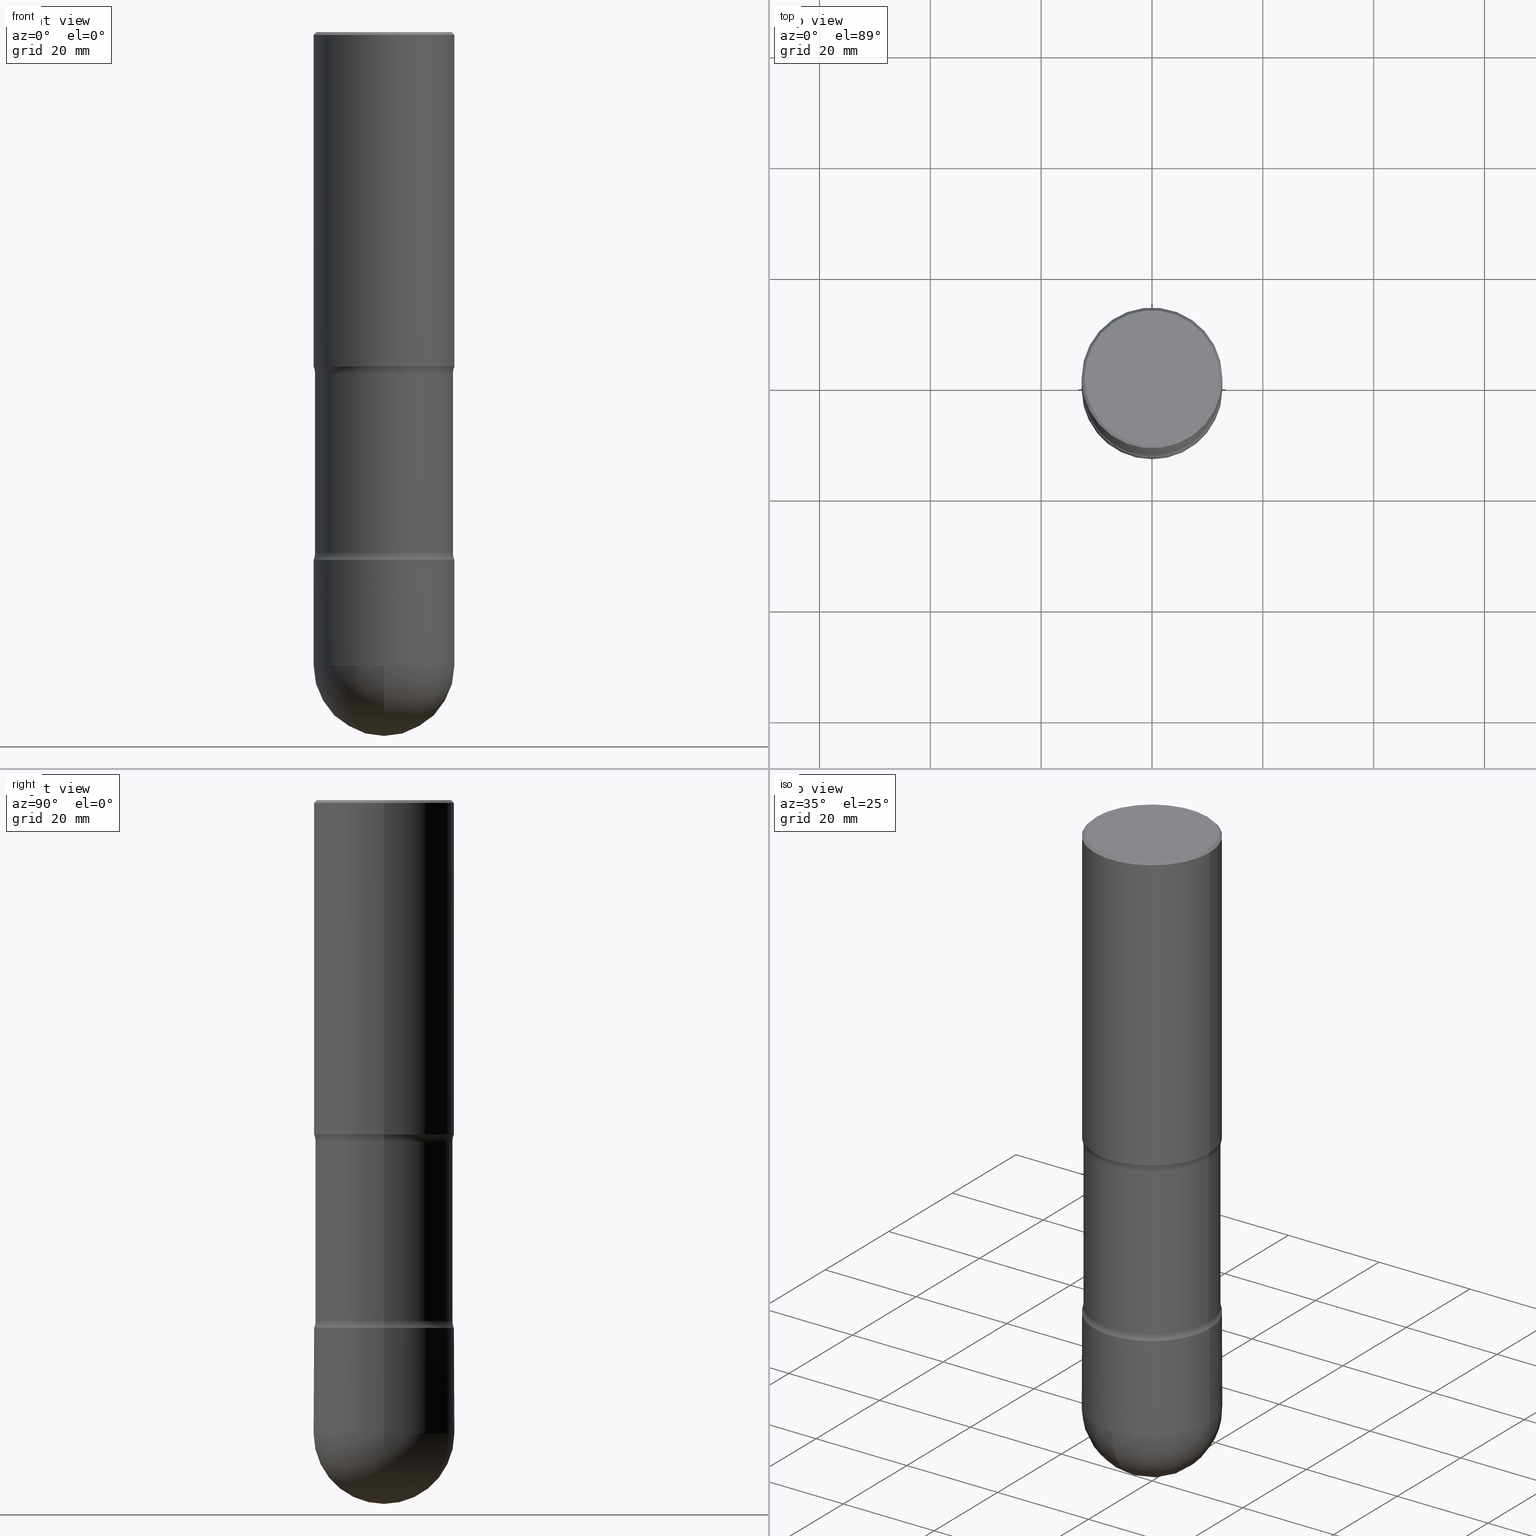
[diagram: canonical four-view strip — front | top / right | iso, engineering-drawing reading convention]
A machine part, canonical four-view strip (front | top / right | iso — engineering-drawing reading convention). The complete STEP part file that produces these views, byte-faithful:
ISO-10303-21;
HEADER;
FILE_DESCRIPTION (( 'STEP AP203' ),
    '1' );
FILE_NAME ('35018.STEP',
    '2024-02-29T19:24:23',
    ( '' ),
    ( '' ),
    'SwSTEP 2.0',
    'SolidWorks 2023',
    '' );
FILE_SCHEMA (( 'CONFIG_CONTROL_DESIGN' ));
ENDSEC;

DATA;
#1 = CARTESIAN_POINT ( 'NONE',  ( -0.4999999999999998335, -9.601573681818665636E-15, -3.750000000000000000 ) ) ;
#2 = EDGE_CURVE ( 'NONE', #437, #478, #128, .T. ) ;
#3 = AXIS2_PLACEMENT_3D ( 'NONE', #87, #133, #352 ) ;
#4 = TOROIDAL_SURFACE ( 'NONE', #321, 0.6149999999999979927, 0.1249999999999984596 ) ;
#5 = FACE_OUTER_BOUND ( 'NONE', #469, .T. ) ;
#6 = DIMENSIONAL_EXPONENTS ( 1.000000000000000000, 0.000000000000000000, 0.000000000000000000, 0.000000000000000000, 0.000000000000000000, 0.000000000000000000, 0.000000000000000000 ) ;
#7 = DATE_TIME_ROLE ( 'creation_date' ) ;
#8 = CARTESIAN_POINT ( 'NONE',  ( -0.4999999999999993339, -1.084964684392748411E-14, -4.499999999999999112 ) ) ;
#9 = LINE ( 'NONE', #121, #104 ) ;
#10 = DIRECTION ( 'NONE',  ( -2.445468806185136597E-29, 3.491481338843145583E-15, 1.000000000000000000 ) ) ;
#11 = AXIS2_PLACEMENT_3D ( 'NONE', #345, #443, #401 ) ;
#12 = PERSON_AND_ORGANIZATION ( #278, #349 ) ;
#13 = LINE ( 'NONE', #1, #461 ) ;
#14 = CIRCLE ( 'NONE', #545, 0.4799999999999995937 ) ;
#15 = UNCERTAINTY_MEASURE_WITH_UNIT (LENGTH_MEASURE( 1.000000000000000082E-05 ), #166, 'distance_accuracy_value', 'NONE');
#16 = DIRECTION ( 'NONE',  ( -2.445468806185136597E-29, 3.491481338843145583E-15, 1.000000000000000000 ) ) ;
#17 = DIRECTION ( 'NONE',  ( -1.000000000000000000, 6.982962677686267499E-15, 0.000000000000000000 ) ) ;
#18 = PERSON_AND_ORGANIZATION_ROLE ( 'creator' ) ;
#19 = CC_DESIGN_PERSON_AND_ORGANIZATION_ASSIGNMENT ( #456, #18, ( #288 ) ) ;
#20 = VERTEX_POINT ( 'NONE', #557 ) ;
#21 = DIRECTION ( 'NONE',  ( -1.000000000000000000, 6.982962677686267499E-15, 0.000000000000000000 ) ) ;
#22 = DIRECTION ( 'NONE',  ( -1.000000000000000000, 6.982962677686266711E-15, -4.883557194083113462E-29 ) ) ;
#23 = VERTEX_POINT ( 'NONE', #170 ) ;
#24 = DATE_AND_TIME ( #366, #446 ) ;
#25 = DIRECTION ( 'NONE',  ( -1.000000000000000000, 6.982962677686267499E-15, 0.000000000000000000 ) ) ;
#26 = EDGE_CURVE ( 'NONE', #209, #389, #63, .T. ) ;
#27 = ORIENTED_EDGE ( 'NONE', *, *, #453, .F. ) ;
#28 = FACE_OUTER_BOUND ( 'NONE', #335, .T. ) ;
#29 = VERTEX_POINT ( 'NONE', #433 ) ;
#30 = CARTESIAN_POINT ( 'NONE',  ( 9.170508023194262238E-29, -1.309305502066179741E-14, -3.750000000000000000 ) ) ;
#31 = TOROIDAL_SURFACE ( 'NONE', #544, 0.6149999999999876676, 0.1249999999999882871 ) ;
#32 = CYLINDRICAL_SURFACE ( 'NONE', #503, 0.4999999999999998335 ) ;
#33 = DIRECTION ( 'NONE',  ( -6.982962677686265922E-15, -1.000000000000000000, 0.000000000000000000 ) ) ;
#34 = ORIENTED_EDGE ( 'NONE', *, *, #450, .T. ) ;
#35 = DIRECTION ( 'NONE',  ( 2.445468806185136597E-29, -3.491481338843145583E-15, -1.000000000000000000 ) ) ;
#36 = VERTEX_POINT ( 'NONE', #518 ) ;
#37 = ORIENTED_EDGE ( 'NONE', *, *, #284, .F. ) ;
#38 = EDGE_CURVE ( 'NONE', #286, #36, #285, .T. ) ;
#39 = CARTESIAN_POINT ( 'NONE',  ( 0.4899999999999994360, -1.405430561911518224E-14, -3.701010205144336318 ) ) ;
#40 = LENGTH_MEASURE_WITH_UNIT ( LENGTH_MEASURE( 0.02539999999999999897 ), #200 );
#41 = EDGE_LOOP ( 'NONE', ( #442, #542, #431, #383 ) ) ;
#42 = ORIENTED_EDGE ( 'NONE', *, *, #492, .F. ) ;
#43 = VECTOR ( 'NONE', #560, 39.37007874015748143 ) ;
#44 =( GEOMETRIC_REPRESENTATION_CONTEXT ( 3 ) GLOBAL_UNCERTAINTY_ASSIGNED_CONTEXT ( ( #15 ) ) GLOBAL_UNIT_ASSIGNED_CONTEXT ( ( #166, #338, #248 ) ) REPRESENTATION_CONTEXT ( 'NONE', 'WORKASPACE' ) );
#45 = DIRECTION ( 'NONE',  ( 6.860497997771531562E-15, 1.000000000000000000, -3.491481338843145583E-15 ) ) ;
#46 = EDGE_CURVE ( 'NONE', #119, #29, #160, .T. ) ;
#47 = DIRECTION ( 'NONE',  ( 2.445468806185136597E-29, -3.491481338843145583E-15, -1.000000000000000000 ) ) ;
#48 = APPLICATION_PROTOCOL_DEFINITION ( 'international standard', 'config_control_design', 1994, #316 ) ;
#49 = FACE_OUTER_BOUND ( 'NONE', #436, .T. ) ;
#50 = EDGE_CURVE ( 'NONE', #437, #23, #140, .T. ) ;
#51 = CARTESIAN_POINT ( 'NONE',  ( -0.6149999999999979927, -8.627486019352455660E-15, -3.701010205144336762 ) ) ;
#52 = AXIS2_PLACEMENT_3D ( 'NONE', #183, #311, #268 ) ;
#53 = CC_DESIGN_SECURITY_CLASSIFICATION ( #429, ( #485 ) ) ;
#54 = DIRECTION ( 'NONE',  ( -2.445468806185136597E-29, 3.491481338843145583E-15, 1.000000000000000000 ) ) ;
#55 = CC_DESIGN_PERSON_AND_ORGANIZATION_ASSIGNMENT ( #318, #60, ( #368 ) ) ;
#56 = CARTESIAN_POINT ( 'NONE',  ( -0.4999999999999999445, -4.800786840909344651E-15, -2.375000000000002220 ) ) ;
#57 = AXIS2_PLACEMENT_3D ( 'NONE', #216, #346, #130 ) ;
#58 = CC_DESIGN_APPROVAL ( #325, ( #485 ) ) ;
#59 = EDGE_CURVE ( 'NONE', #393, #250, #382, .T. ) ;
#60 = PERSON_AND_ORGANIZATION_ROLE ( 'design_owner' ) ;
#61 = PERSON_AND_ORGANIZATION_ROLE ( 'classification_officer' ) ;
#62 = PLANE ( 'NONE',  #347 ) ;
#63 = CIRCLE ( 'NONE', #212, 0.4999999999999999445 ) ;
#64 = CALENDAR_DATE ( 2024, 29, 2 ) ;
#65 = AXIS2_PLACEMENT_3D ( 'NONE', #228, #408, #223 ) ;
#66 = DIRECTION ( 'NONE',  ( -1.000000000000000000, 6.982962677686266711E-15, 0.000000000000000000 ) ) ;
#67 = ORIENTED_EDGE ( 'NONE', *, *, #274, .T. ) ;
#68 = DIRECTION ( 'NONE',  ( 1.000000000000000000, -6.982962677686265922E-15, 0.000000000000000000 ) ) ;
#69 = ORIENTED_EDGE ( 'NONE', *, *, #2, .F. ) ;
#70 = APPROVAL_DATE_TIME ( #102, #343 ) ;
#71 = EDGE_CURVE ( 'NONE', #472, #209, #304, .T. ) ;
#72 = FACE_OUTER_BOUND ( 'NONE', #210, .T. ) ;
#73 = EDGE_LOOP ( 'NONE', ( #123, #307 ) ) ;
#74 = FACE_OUTER_BOUND ( 'NONE', #41, .T. ) ;
#75 = ORIENTED_EDGE ( 'NONE', *, *, #274, .F. ) ;
#76 = ORIENTED_EDGE ( 'NONE', *, *, #107, .T. ) ;
#77 = CYLINDRICAL_SURFACE ( 'NONE', #405, 0.4999999999999993339 ) ;
#78 = FACE_OUTER_BOUND ( 'NONE', #548, .T. ) ;
#79 = ORIENTED_EDGE ( 'NONE', *, *, #547, .T. ) ;
#80 = CLOSED_SHELL ( 'NONE', ( #330, #561, #310, #512, #360, #355, #231, #280, #205, #530, #482, #176, #409, #149 ) ) ;
#81 = AXIS2_PLACEMENT_3D ( 'NONE', #30, #432, #207 ) ;
#82 = EDGE_CURVE ( 'NONE', #20, #168, #354, .T. ) ;
#83 = DIRECTION ( 'NONE',  ( 2.445468806185136597E-29, -3.491481338843145583E-15, -1.000000000000000000 ) ) ;
#84 = VERTEX_POINT ( 'NONE', #258 ) ;
#85 = DIRECTION ( 'NONE',  ( 2.445468806185136597E-29, -3.491481338843145583E-15, -1.000000000000000000 ) ) ;
#86 = DIRECTION ( 'NONE',  ( 2.445468806185136597E-29, -3.491481338843145583E-15, -1.000000000000000000 ) ) ;
#87 = CARTESIAN_POINT ( 'NONE',  ( 1.100460962783311244E-28, -1.571166602479415374E-14, -4.499999999999999112 ) ) ;
#88 = ORIENTED_EDGE ( 'NONE', *, *, #365, .T. ) ;
#89 = CARTESIAN_POINT ( 'NONE',  ( 0.4999999999999998335, -1.652330401954756320E-14, -3.750000000000000000 ) ) ;
#90 = CC_DESIGN_PERSON_AND_ORGANIZATION_ASSIGNMENT ( #370, #61, ( #429 ) ) ;
#91 = AXIS2_PLACEMENT_3D ( 'NONE', #336, #282, #21 ) ;
#92 = LOCAL_TIME ( 14, 24, 23.00000000000000000, #199 ) ;
#93 = DIRECTION ( 'NONE',  ( 0.7071067811862723484, -2.468850131079375352E-15, 0.7071067811868225750 ) ) ;
#94 = EDGE_CURVE ( 'NONE', #119, #209, #362, .T. ) ;
#95 = MECHANICAL_CONTEXT ( 'NONE', #316, 'mechanical' ) ;
#96 = DIRECTION ( 'NONE',  ( -0.7071067811862723484, 7.493145998869358618E-15, 0.7071067811868225750 ) ) ;
#97 = FACE_OUTER_BOUND ( 'NONE', #240, .T. ) ;
#98 = AXIS2_PLACEMENT_3D ( 'NONE', #197, #379, #118 ) ;
#99 = VECTOR ( 'NONE', #96, 39.37007874015748854 ) ;
#100 = FACE_OUTER_BOUND ( 'NONE', #253, .T. ) ;
#101 = DIRECTION ( 'NONE',  ( -1.000000000000000000, 6.982962677686265922E-15, -4.876176775795935793E-29 ) ) ;
#102 = DATE_AND_TIME ( #493, #384 ) ;
#103 = CC_DESIGN_DATE_AND_TIME_ASSIGNMENT ( #494, #7, ( #288 ) ) ;
#104 = VECTOR ( 'NONE', #332, 39.37007874015748143 ) ;
#105 = APPROVAL_PERSON_ORGANIZATION ( #324, #343, #451 ) ;
#106 = APPROVAL_STATUS ( 'not_yet_approved' ) ;
#107 = EDGE_CURVE ( 'NONE', #168, #380, #320, .T. ) ;
#108 = EDGE_LOOP ( 'NONE', ( #499, #506, #551, #27 ) ) ;
#109 = DIRECTION ( 'NONE',  ( 2.445468806185136597E-29, -3.491481338843145583E-15, -1.000000000000000000 ) ) ;
#110 = PLANE ( 'NONE',  #271 ) ;
#111 = FACE_OUTER_BOUND ( 'NONE', #156, .T. ) ;
#112 = VERTEX_POINT ( 'NONE', #373 ) ;
#113 = CARTESIAN_POINT ( 'NONE',  ( 9.170508023194262238E-29, -1.309305502066179741E-14, -3.750000000000000000 ) ) ;
#114 = VECTOR ( 'NONE', #232, 39.37007874015748143 ) ;
#115 = COORDINATED_UNIVERSAL_TIME_OFFSET ( 5, 0, .BEHIND. ) ;
#116 = FACE_OUTER_BOUND ( 'NONE', #171, .T. ) ;
#117 = EDGE_LOOP ( 'NONE', ( #519, #386, #75, #42 ) ) ;
#118 = DIRECTION ( 'NONE',  ( -1.000000000000000000, 6.982962677686265922E-15, 0.000000000000000000 ) ) ;
#119 = VERTEX_POINT ( 'NONE', #192 ) ;
#120 = ORIENTED_EDGE ( 'NONE', *, *, #249, .T. ) ;
#121 = CARTESIAN_POINT ( 'NONE',  ( 0.4999999999999997224, -3.500078625662628291E-15, -0.02000000000000033348 ) ) ;
#122 = LINE ( 'NONE', #537, #114 ) ;
#123 = ORIENTED_EDGE ( 'NONE', *, *, #144, .T. ) ;
#124 = ORIENTED_EDGE ( 'NONE', *, *, #38, .F. ) ;
#125 = DIRECTION ( 'NONE',  ( 2.445468806185136877E-29, -3.491481338843145188E-15, -1.000000000000000000 ) ) ;
#126 = AXIS2_PLACEMENT_3D ( 'NONE', #438, #45, #559 ) ;
#127 = DIRECTION ( 'NONE',  ( -2.445468806185136877E-29, 3.491481338843145188E-15, 1.000000000000000000 ) ) ;
#128 = LINE ( 'NONE', #391, #135 ) ;
#129 = ORIENTED_EDGE ( 'NONE', *, *, #131, .F. ) ;
#130 = DIRECTION ( 'NONE',  ( -1.000000000000000000, 6.982962677686267499E-15, 0.000000000000000000 ) ) ;
#131 = EDGE_CURVE ( 'NONE', #119, #380, #122, .T. ) ;
#132 = ORIENTED_EDGE ( 'NONE', *, *, #441, .F. ) ;
#133 = DIRECTION ( 'NONE',  ( -2.445468806185136597E-29, 3.491481338843145583E-15, 1.000000000000000000 ) ) ;
#134 = EDGE_CURVE ( 'NONE', #29, #389, #414, .T. ) ;
#135 = VECTOR ( 'NONE', #260, 39.37007874015748143 ) ;
#136 = FACE_OUTER_BOUND ( 'NONE', #117, .T. ) ;
#137 = CC_DESIGN_DATE_AND_TIME_ASSIGNMENT ( #24, #148, ( #429 ) ) ;
#138 = CYLINDRICAL_SURFACE ( 'NONE', #300, 0.4999999999999998335 ) ;
#139 = CARTESIAN_POINT ( 'NONE',  ( 0.4999999999999993339, -3.491481338843128622E-15, 2.438088387897964533E-29 ) ) ;
#140 = CIRCLE ( 'NONE', #3, 0.4999999999999993339 ) ;
#141 = CIRCLE ( 'NONE', #357, 0.4899999999999994360 ) ;
#142 = MANIFOLD_SOLID_BREP ( 'Body-Move/Copy2[1]', #413 ) ;
#143 = EDGE_CURVE ( 'NONE', #112, #23, #356, .T. ) ;
#144 = EDGE_CURVE ( 'NONE', #84, #478, #473, .T. ) ;
#145 = CARTESIAN_POINT ( 'NONE',  ( 0.4999999999999993339, -1.789384186157110736E-14, -4.499999999999999112 ) ) ;
#146 = AXIS2_PLACEMENT_3D ( 'NONE', #481, #47, #520 ) ;
#147 = CONICAL_SURFACE ( 'NONE', #474, 0.4999999999999997224, 0.7853981633974431720 ) ;
#148 = DATE_TIME_ROLE ( 'classification_date' ) ;
#149 = ADVANCED_FACE ( 'NONE', ( #78 ), #62, .T. ) ;
#150 = APPLICATION_PROTOCOL_DEFINITION ( 'international standard', 'config_control_design', 1994, #369 ) ;
#151 = ADVANCED_FACE ( 'NONE', ( #463 ), #252, .T. ) ;
#152 = ORIENTED_EDGE ( 'NONE', *, *, #284, .T. ) ;
#153 = SPHERICAL_SURFACE ( 'NONE', #313, 0.4999999999999998335 ) ;
#154 = LINE ( 'NONE', #194, #523 ) ;
#155 = APPROVAL_ROLE ( '' ) ;
#156 = EDGE_LOOP ( 'NONE', ( #479, #174, #337, #198 ) ) ;
#157 = DIRECTION ( 'NONE',  ( 1.000000000000000000, -6.982962677686264344E-15, 0.000000000000000000 ) ) ;
#158 = FACE_OUTER_BOUND ( 'NONE', #108, .T. ) ;
#159 = ORIENTED_EDGE ( 'NONE', *, *, #243, .T. ) ;
#160 = CIRCLE ( 'NONE', #57, 0.4899999999999994360 ) ;
#161 = CC_DESIGN_APPROVAL ( #267, ( #288 ) ) ;
#162 = ORIENTED_EDGE ( 'NONE', *, *, #82, .F. ) ;
#163 = CARTESIAN_POINT ( 'NONE',  ( 1.087633468445620528E-28, -1.589536304466625962E-14, -4.500000000000000000 ) ) ;
#164 = ORIENTED_EDGE ( 'NONE', *, *, #312, .F. ) ;
#165 = CC_DESIGN_PERSON_AND_ORGANIZATION_ASSIGNMENT ( #374, #464, ( #485 ) ) ;
#166 =( CONVERSION_BASED_UNIT ( 'INCH', #40 ) LENGTH_UNIT ( ) NAMED_UNIT ( #6 ) );
#167 = DIRECTION ( 'NONE',  ( 1.000000000000000000, -6.982962677686265922E-15, 0.000000000000000000 ) ) ;
#168 = VERTEX_POINT ( 'NONE', #416 ) ;
#169 = CYLINDRICAL_SURFACE ( 'NONE', #11, 0.4899999999999994360 ) ;
#170 = CARTESIAN_POINT ( 'NONE',  ( -3.491481338843020943E-15, -0.5000000000000154321, -4.499999999999998224 ) ) ;
#171 = EDGE_LOOP ( 'NONE', ( #425, #259, #296, #521 ) ) ;
#172 = AXIS2_PLACEMENT_3D ( 'NONE', #236, #470, #495 ) ;
#173 = AXIS2_PLACEMENT_3D ( 'NONE', #549, #435, #375 ) ;
#174 = ORIENTED_EDGE ( 'NONE', *, *, #38, .T. ) ;
#175 = ORIENTED_EDGE ( 'NONE', *, *, #224, .T. ) ;
#176 = ADVANCED_FACE ( 'NONE', ( #74 ), #179, .T. ) ;
#177 = DIRECTION ( 'NONE',  ( 2.445468806185136597E-29, -3.491481338843145583E-15, -1.000000000000000000 ) ) ;
#178 = ORIENTED_EDGE ( 'NONE', *, *, #59, .F. ) ;
#179 = CONICAL_SURFACE ( 'NONE', #225, 0.4994999999999992779, 0.7853981633970592569 ) ;
#180 = LINE ( 'NONE', #139, #269 ) ;
#181 = AXIS2_PLACEMENT_3D ( 'NONE', #51, #219, #204 ) ;
#182 = CARTESIAN_POINT ( 'NONE',  ( 0.4799999999999995937, -3.396558832296480127E-15, 2.359727204893467688E-29 ) ) ;
#183 = CARTESIAN_POINT ( 'NONE',  ( 9.050705008053328258E-29, -1.292200806612949328E-14, -3.701010205144336318 ) ) ;
#184 = DESIGN_CONTEXT ( 'detailed design', #369, 'design' ) ;
#185 = CONICAL_SURFACE ( 'NONE', #502, 0.4999999999999997224, 0.7853981633974431720 ) ;
#186 = AXIS2_PLACEMENT_3D ( 'NONE', #448, #54, #167 ) ;
#187 = DIRECTION ( 'NONE',  ( 2.438088387897960049E-29, -3.491481338843145188E-15, -1.000000000000000000 ) ) ;
#188 = EDGE_CURVE ( 'NONE', #29, #554, #154, .T. ) ;
#189 = APPROVAL_ROLE ( '' ) ;
#190 = DIRECTION ( 'NONE',  ( 2.445468806185136597E-29, -3.491481338843145583E-15, -1.000000000000000000 ) ) ;
#191 = DIRECTION ( 'NONE',  ( 1.000000000000000000, -6.982962677686266711E-15, 4.876176775795935793E-29 ) ) ;
#192 = CARTESIAN_POINT ( 'NONE',  ( 0.4899999999999994360, -1.177373816591553444E-14, -2.423989794855664570 ) ) ;
#193 = COORDINATED_UNIVERSAL_TIME_OFFSET ( 5, 0, .BEHIND. ) ;
#194 = CARTESIAN_POINT ( 'NONE',  ( -0.4899999999999994360, -9.671403308595530512E-15, -3.750000000000000000 ) ) ;
#195 = CALENDAR_DATE ( 2024, 29, 2 ) ;
#196 = ORIENTED_EDGE ( 'NONE', *, *, #255, .F. ) ;
#197 = CARTESIAN_POINT ( 'NONE',  ( 9.170508023194262238E-29, -1.309305502066179741E-14, -3.750000000000000000 ) ) ;
#198 = ORIENTED_EDGE ( 'NONE', *, *, #525, .F. ) ;
#199 = COORDINATED_UNIVERSAL_TIME_OFFSET ( 5, 0, .BEHIND. ) ;
#200 =( LENGTH_UNIT ( ) NAMED_UNIT ( * ) SI_UNIT ( $, .METRE. ) );
#201 = EDGE_CURVE ( 'NONE', #168, #247, #445, .T. ) ;
#202 = ORIENTED_EDGE ( 'NONE', *, *, #450, .F. ) ;
#203 = ORIENTED_EDGE ( 'NONE', *, *, #525, .T. ) ;
#204 = DIRECTION ( 'NONE',  ( 1.000000000000000000, -6.982962677686271444E-15, 0.000000000000000000 ) ) ;
#205 = ADVANCED_FACE ( 'NONE', ( #287 ), #31, .F. ) ;
#206 = DIRECTION ( 'NONE',  ( -2.438088387897960049E-29, 3.491481338843145188E-15, 1.000000000000000000 ) ) ;
#207 = DIRECTION ( 'NONE',  ( -1.000000000000000000, 6.982962677686265133E-15, 0.000000000000000000 ) ) ;
#208 = EDGE_LOOP ( 'NONE', ( #266, #88, #159, #162 ) ) ;
#209 = VERTEX_POINT ( 'NONE', #505 ) ;
#210 = EDGE_LOOP ( 'NONE', ( #129, #462, #334, #202 ) ) ;
#211 = ORIENTED_EDGE ( 'NONE', *, *, #396, .F. ) ;
#212 = AXIS2_PLACEMENT_3D ( 'NONE', #350, #177, #308 ) ;
#213 = EDGE_CURVE ( 'NONE', #514, #20, #439, .T. ) ;
#214 = AXIS2_PLACEMENT_3D ( 'NONE', #468, #85, #388 ) ;
#215 = CARTESIAN_POINT ( 'NONE',  ( 0.6149999999999979927, -1.714121433475897137E-14, -3.701010205144336762 ) ) ;
#216 = CARTESIAN_POINT ( 'NONE',  ( 5.927791429830635639E-29, -8.463315134284777408E-15, -2.423989794855664570 ) ) ;
#217 = DIRECTION ( 'NONE',  ( 2.445468806185136597E-29, -3.491481338843145583E-15, -1.000000000000000000 ) ) ;
#218 = CIRCLE ( 'NONE', #172, 0.4999999999999993339 ) ;
#219 = DIRECTION ( 'NONE',  ( -6.982962677686266711E-15, -1.000000000000000000, 3.491481338843145583E-15 ) ) ;
#220 = AXIS2_PLACEMENT_3D ( 'NONE', #257, #419, #342 ) ;
#221 = DIRECTION ( 'NONE',  ( 2.445468806185136597E-29, -3.491481338843145583E-15, -1.000000000000000000 ) ) ;
#222 = ADVANCED_FACE ( 'NONE', ( #158 ), #153, .T. ) ;
#223 = DIRECTION ( 'NONE',  ( -1.000000000000000000, 6.982962677686265922E-15, 0.000000000000000000 ) ) ;
#224 = EDGE_CURVE ( 'NONE', #23, #393, #428, .T. ) ;
#225 = AXIS2_PLACEMENT_3D ( 'NONE', #113, #550, #68 ) ;
#226 = APPROVAL_PERSON_ORGANIZATION ( #424, #325, #189 ) ;
#227 = PERSON_AND_ORGANIZATION_ROLE ( 'creator' ) ;
#228 = CARTESIAN_POINT ( 'NONE',  ( 9.170508023194262238E-29, -1.309305502066179741E-14, -3.750000000000000000 ) ) ;
#229 = PERSON_AND_ORGANIZATION ( #278, #349 ) ;
#230 = CARTESIAN_POINT ( 'NONE',  ( 3.487989857504376728E-15, 0.4994999999999861773, -3.750000000000001776 ) ) ;
#231 = ADVANCED_FACE ( 'NONE', ( #111 ), #185, .T. ) ;
#232 = DIRECTION ( 'NONE',  ( 2.445468806185136877E-29, -3.491481338843145188E-15, -1.000000000000000000 ) ) ;
#233 = FACE_OUTER_BOUND ( 'NONE', #351, .T. ) ;
#234 = AXIS2_PLACEMENT_3D ( 'NONE', #339, #477, #358 ) ;
#235 = CIRCLE ( 'NONE', #181, 0.1249999999999984596 ) ;
#236 = CARTESIAN_POINT ( 'NONE',  ( 9.170508023194262238E-29, -1.309305502066179741E-14, -3.750000000000000000 ) ) ;
#237 = CARTESIAN_POINT ( 'NONE',  ( 0.000000000000000000, 0.000000000000000000, 0.000000000000000000 ) ) ;
#238 = APPROVAL_STATUS ( 'not_yet_approved' ) ;
#239 = FACE_OUTER_BOUND ( 'NONE', #504, .T. ) ;
#240 = EDGE_LOOP ( 'NONE', ( #292, #203, #558, #553 ) ) ;
#241 = CARTESIAN_POINT ( 'NONE',  ( 1.087633468445620528E-28, -1.589536304466625962E-14, -4.500000000000000000 ) ) ;
#242 = ORIENTED_EDGE ( 'NONE', *, *, #376, .T. ) ;
#243 = EDGE_CURVE ( 'NONE', #247, #168, #264, .T. ) ;
#244 = VERTEX_POINT ( 'NONE', #510 ) ;
#245 = CARTESIAN_POINT ( 'NONE',  ( 3.552713678800606637E-15, 0.4999999999999837352, -4.500000000000000888 ) ) ;
#246 = DIRECTION ( 'NONE',  ( 2.445468806185136877E-29, -3.491481338843145188E-15, -1.000000000000000000 ) ) ;
#247 = VERTEX_POINT ( 'NONE', #378 ) ;
#248 =( NAMED_UNIT ( * ) SI_UNIT ( $, .STERADIAN. ) SOLID_ANGLE_UNIT ( ) );
#249 = EDGE_CURVE ( 'NONE', #286, #472, #9, .T. ) ;
#250 = VERTEX_POINT ( 'NONE', #245 ) ;
#251 = CARTESIAN_POINT ( 'NONE',  ( 5.807988414689705023E-29, -8.292268179752478006E-15, -2.375000000000002220 ) ) ;
#252 = CYLINDRICAL_SURFACE ( 'NONE', #452, 0.4999999999999993339 ) ;
#253 = EDGE_LOOP ( 'NONE', ( #79, #290, #37, #294 ) ) ;
#254 = AXIS2_PLACEMENT_3D ( 'NONE', #251, #109, #372 ) ;
#255 = EDGE_CURVE ( 'NONE', #478, #84, #218, .T. ) ;
#256 = CIRCLE ( 'NONE', #363, 0.4999999999999997224 ) ;
#257 = CARTESIAN_POINT ( 'NONE',  ( 5.927791429830635639E-29, -8.463315134284777408E-15, -2.423989794855664570 ) ) ;
#258 = CARTESIAN_POINT ( 'NONE',  ( 0.4999999999999993339, -1.658453635950492446E-14, -3.750000000000000000 ) ) ;
#259 = ORIENTED_EDGE ( 'NONE', *, *, #94, .T. ) ;
#260 = DIRECTION ( 'NONE',  ( -2.445468806185136877E-29, 3.491481338843145188E-15, 1.000000000000000000 ) ) ;
#261 = EDGE_LOOP ( 'NONE', ( #476, #305, #178, #546 ) ) ;
#262 = PRODUCT_RELATED_PRODUCT_CATEGORY ( 'detail', '', ( #368 ) ) ;
#263 = CARTESIAN_POINT ( 'NONE',  ( 0.4994999999999992779, -1.658104487816608303E-14, -3.750000000000000000 ) ) ;
#264 = CIRCLE ( 'NONE', #91, 0.4998510749934461650 ) ;
#265 = APPROVAL_PERSON_ORGANIZATION ( #12, #267, #155 ) ;
#266 = ORIENTED_EDGE ( 'NONE', *, *, #213, .F. ) ;
#267 = APPROVAL ( #407, 'UNSPECIFIED' ) ;
#268 = DIRECTION ( 'NONE',  ( -1.000000000000000000, 6.982962677686265133E-15, 0.000000000000000000 ) ) ;
#269 = VECTOR ( 'NONE', #127, 39.37007874015748143 ) ;
#270 = CARTESIAN_POINT ( 'NONE',  ( 1.087633468445620528E-28, -1.589536304466625962E-14, -4.500000000000000000 ) ) ;
#271 = AXIS2_PLACEMENT_3D ( 'NONE', #230, #187, #101 ) ;
#272 = ADVANCED_FACE ( 'NONE', ( #28 ), #77, .T. ) ;
#273 = DIRECTION ( 'NONE',  ( -1.000000000000000000, 6.982962677686266711E-15, 0.000000000000000000 ) ) ;
#274 = EDGE_CURVE ( 'NONE', #389, #209, #484, .T. ) ;
#275 = CARTESIAN_POINT ( 'NONE',  ( 9.050705008053328258E-29, -1.292200806612949328E-14, -3.701010205144336318 ) ) ;
#276 = AXIS2_PLACEMENT_3D ( 'NONE', #295, #421, #157 ) ;
#277 = PRODUCT_DEFINITION_SHAPE ( 'NONE', 'NONE',  #288 ) ;
#278 = PERSON ( 'UNSPECIFIED', 'UNSPECIFIED', 'UNSPECIFIED', ('UNSPECIFIED'), ('UNSPECIFIED'), ('UNSPECIFIED') ) ;
#279 = CARTESIAN_POINT ( 'NONE',  ( -0.4999999999999997224, 3.421651712066267296E-15, -0.02000000000000033348 ) ) ;
#280 = ADVANCED_FACE ( 'NONE', ( #97 ), #138, .T. ) ;
#281 = CARTESIAN_POINT ( 'NONE',  ( 0.4999999999999997224, -3.500078625662628291E-15, -0.02000000000000033348 ) ) ;
#282 = DIRECTION ( 'NONE',  ( 2.445468806185136597E-29, -3.491481338843145583E-15, -1.000000000000000000 ) ) ;
#283 = DIRECTION ( 'NONE',  ( 1.000000000000000000, -6.982962677686268288E-15, 0.000000000000000000 ) ) ;
#284 = EDGE_CURVE ( 'NONE', #554, #380, #535, .T. ) ;
#285 = CIRCLE ( 'NONE', #146, 0.4799999999999995937 ) ;
#286 = VERTEX_POINT ( 'NONE', #182 ) ;
#287 = FACE_OUTER_BOUND ( 'NONE', #465, .T. ) ;
#288 = PRODUCT_DEFINITION ( 'UNKNOWN', '', #485, #184 ) ;
#289 = COORDINATED_UNIVERSAL_TIME_OFFSET ( 5, 0, .BEHIND. ) ;
#290 = ORIENTED_EDGE ( 'NONE', *, *, #131, .T. ) ;
#291 = DIRECTION ( 'NONE',  ( 1.000000000000000000, -6.982962677686265922E-15, 4.883557194083112901E-29 ) ) ;
#292 = ORIENTED_EDGE ( 'NONE', *, *, #71, .F. ) ;
#293 = ADVANCED_FACE ( 'NONE', ( #359 ), #488, .T. ) ;
#294 = ORIENTED_EDGE ( 'NONE', *, *, #188, .F. ) ;
#295 = CARTESIAN_POINT ( 'NONE',  ( 1.100460962783311244E-28, -1.571166602479415374E-14, -4.499999999999999112 ) ) ;
#296 = ORIENTED_EDGE ( 'NONE', *, *, #26, .T. ) ;
#297 = CARTESIAN_POINT ( 'NONE',  ( 5.927791429830635639E-29, -8.463315134284777408E-15, -2.423989794855664570 ) ) ;
#298 = CARTESIAN_POINT ( 'NONE',  ( 9.170508023194262238E-29, -1.309305502066179741E-14, -3.750000000000000000 ) ) ;
#299 = ORIENTED_EDGE ( 'NONE', *, *, #376, .F. ) ;
#300 = AXIS2_PLACEMENT_3D ( 'NONE', #565, #83, #513 ) ;
#301 = CC_DESIGN_APPROVAL ( #343, ( #429 ) ) ;
#302 = CARTESIAN_POINT ( 'NONE',  ( -0.4994999999999992779, -9.542033900714521268E-15, -3.750000000000000000 ) ) ;
#303 = FACE_OUTER_BOUND ( 'NONE', #208, .T. ) ;
#304 = LINE ( 'NONE', #89, #43 ) ;
#305 = ORIENTED_EDGE ( 'NONE', *, *, #566, .T. ) ;
#306 = CARTESIAN_POINT ( 'NONE',  ( 1.100460962783311244E-28, -1.571166602479415374E-14, -4.499999999999999112 ) ) ;
#307 = ORIENTED_EDGE ( 'NONE', *, *, #255, .T. ) ;
#308 = DIRECTION ( 'NONE',  ( -1.000000000000000000, 6.982962677686267499E-15, 0.000000000000000000 ) ) ;
#309 = LOCAL_TIME ( 14, 24, 23.00000000000000000, #115 ) ;
#310 = ADVANCED_FACE ( 'NONE', ( #100 ), #169, .T. ) ;
#311 = DIRECTION ( 'NONE',  ( 2.445468806185136597E-29, -3.491481338843145583E-15, -1.000000000000000000 ) ) ;
#312 = EDGE_CURVE ( 'NONE', #393, #84, #180, .T. ) ;
#313 = AXIS2_PLACEMENT_3D ( 'NONE', #163, #291, #411 ) ;
#314 = CIRCLE ( 'NONE', #65, 0.4994999999999992779 ) ;
#315 = PLANE ( 'NONE',  #234 ) ;
#316 = APPLICATION_CONTEXT ( 'configuration controlled 3d designs of mechanical parts and assemblies' ) ;
#317 = DATE_AND_TIME ( #458, #92 ) ;
#318 = PERSON_AND_ORGANIZATION ( #278, #349 ) ;
#319 = DIRECTION ( 'NONE',  ( 2.445468806185136597E-29, -3.491481338843145583E-15, -1.000000000000000000 ) ) ;
#320 = CIRCLE ( 'NONE', #563, 0.1249999999999984596 ) ;
#321 = AXIS2_PLACEMENT_3D ( 'NONE', #449, #221, #403 ) ;
#322 = CARTESIAN_POINT ( 'NONE',  ( 0.000000000000000000, 0.000000000000000000, 0.000000000000000000 ) ) ;
#323 = DIRECTION ( 'NONE',  ( -6.982962677686266711E-15, -1.000000000000000000, 3.491481338843145583E-15 ) ) ;
#324 = PERSON_AND_ORGANIZATION ( #278, #349 ) ;
#325 = APPROVAL ( #106, 'UNSPECIFIED' ) ;
#326 = ORIENTED_EDGE ( 'NONE', *, *, #144, .F. ) ;
#327 = DIRECTION ( 'NONE',  ( -1.000000000000000000, 6.982962677686265922E-15, -4.883557194083112340E-29 ) ) ;
#328 = APPROVAL_DATE_TIME ( #317, #267 ) ;
#329 = ORIENTED_EDGE ( 'NONE', *, *, #59, .T. ) ;
#330 = ADVANCED_FACE ( 'NONE', ( #303 ), #555, .T. ) ;
#331 = AXIS2_PLACEMENT_3D ( 'NONE', #364, #526, #486 ) ;
#332 = DIRECTION ( 'NONE',  ( 0.7071067811865439090, -7.319954787623243424E-15, -0.7071067811865511255 ) ) ;
#333 = CARTESIAN_POINT ( 'NONE',  ( 9.169649480249156461E-29, -1.309182924887364045E-14, -3.749648925006552780 ) ) ;
#334 = ORIENTED_EDGE ( 'NONE', *, *, #188, .T. ) ;
#335 = EDGE_LOOP ( 'NONE', ( #69, #390, #175, #348, #196 ) ) ;
#336 = CARTESIAN_POINT ( 'NONE',  ( 9.169649480249156461E-29, -1.309182924887364045E-14, -3.749648925006552780 ) ) ;
#337 = ORIENTED_EDGE ( 'NONE', *, *, #396, .T. ) ;
#338 =( NAMED_UNIT ( * ) PLANE_ANGLE_UNIT ( ) SI_UNIT ( $, .RADIAN. ) );
#339 = CARTESIAN_POINT ( 'NONE',  ( 9.170508023194262238E-29, -1.309305502066179741E-14, -3.750000000000000000 ) ) ;
#340 = DIRECTION ( 'NONE',  ( 2.445468806185136597E-29, -3.491481338843145583E-15, -1.000000000000000000 ) ) ;
#341 = ORIENTED_EDGE ( 'NONE', *, *, #2, .T. ) ;
#342 = DIRECTION ( 'NONE',  ( -1.000000000000000000, 6.982962677686266711E-15, -4.883557194083113462E-29 ) ) ;
#343 = APPROVAL ( #238, 'UNSPECIFIED' ) ;
#344 = MANIFOLD_SOLID_BREP ( 'Body-Move/Copy2[2]', #80 ) ;
#345 = CARTESIAN_POINT ( 'NONE',  ( 9.170508023194262238E-29, -1.309305502066179741E-14, -3.750000000000000000 ) ) ;
#346 = DIRECTION ( 'NONE',  ( 2.445468806185136597E-29, -3.491481338843145583E-15, -1.000000000000000000 ) ) ;
#347 = AXIS2_PLACEMENT_3D ( 'NONE', #457, #206, #385 ) ;
#348 = ORIENTED_EDGE ( 'NONE', *, *, #312, .T. ) ;
#349 = ORGANIZATION ( 'UNSPECIFIED', 'UNSPECIFIED', '' ) ;
#350 = CARTESIAN_POINT ( 'NONE',  ( 5.807988414689705023E-29, -8.292268179752478006E-15, -2.375000000000002220 ) ) ;
#351 = EDGE_LOOP ( 'NONE', ( #539, #387, #242, #152 ) ) ;
#352 = DIRECTION ( 'NONE',  ( 1.000000000000000000, -6.982962677686264344E-15, 0.000000000000000000 ) ) ;
#353 = ADVANCED_FACE ( 'NONE', ( #402 ), #315, .F. ) ;
#354 = LINE ( 'NONE', #263, #460 ) ;
#355 = ADVANCED_FACE ( 'NONE', ( #49 ), #147, .T. ) ;
#356 = CIRCLE ( 'NONE', #399, 0.4999999999999998335 ) ;
#357 = AXIS2_PLACEMENT_3D ( 'NONE', #275, #531, #497 ) ;
#358 = DIRECTION ( 'NONE',  ( -1.000000000000000000, 6.982962677686265922E-15, -4.876176775795935793E-29 ) ) ;
#359 = FACE_OUTER_BOUND ( 'NONE', #261, .T. ) ;
#360 = ADVANCED_FACE ( 'NONE', ( #136 ), #32, .T. ) ;
#361 = DIRECTION ( 'NONE',  ( -1.000000000000000000, 6.982962677686266711E-15, -4.876176775795935793E-29 ) ) ;
#362 = CIRCLE ( 'NONE', #126, 0.1249999999999882871 ) ;
#363 = AXIS2_PLACEMENT_3D ( 'NONE', #459, #35, #66 ) ;
#364 = CARTESIAN_POINT ( 'NONE',  ( 0.000000000000000000, 0.000000000000000000, 0.000000000000000000 ) ) ;
#365 = EDGE_CURVE ( 'NONE', #514, #247, #527, .T. ) ;
#366 = CALENDAR_DATE ( 2024, 29, 2 ) ;
#367 = CARTESIAN_POINT ( 'NONE',  ( 4.890937612370354609E-31, -6.982962677686407473E-17, -0.02000000000000033348 ) ) ;
#368 = PRODUCT ( '35018', '35018', '', ( #95 ) ) ;
#369 = APPLICATION_CONTEXT ( 'configuration controlled 3d designs of mechanical parts and assemblies' ) ;
#370 = PERSON_AND_ORGANIZATION ( #278, #349 ) ;
#371 = AXIS2_PLACEMENT_3D ( 'NONE', #270, #517, #552 ) ;
#372 = DIRECTION ( 'NONE',  ( -1.000000000000000000, 6.982962677686267499E-15, 0.000000000000000000 ) ) ;
#373 = CARTESIAN_POINT ( 'NONE',  ( 1.207768993031928718E-28, -1.767171988406651324E-14, -5.000000000000000000 ) ) ;
#374 = PERSON_AND_ORGANIZATION ( #278, #349 ) ;
#375 = DIRECTION ( 'NONE',  ( 7.105427357601001070E-15, 1.000000000000000000, 0.000000000000000000 ) ) ;
#376 = EDGE_CURVE ( 'NONE', #247, #554, #235, .T. ) ;
#377 = ORIENTED_EDGE ( 'NONE', *, *, #453, .T. ) ;
#378 = CARTESIAN_POINT ( 'NONE',  ( -0.4998510749934461650, -9.601387847793047231E-15, -3.749648925006552780 ) ) ;
#379 = DIRECTION ( 'NONE',  ( 2.445468806185136597E-29, -3.491481338843145583E-15, -1.000000000000000000 ) ) ;
#380 = VERTEX_POINT ( 'NONE', #39 ) ;
#381 = DIRECTION ( 'NONE',  ( 2.445468806185136597E-29, -3.491481338843145583E-15, -1.000000000000000000 ) ) ;
#382 = CIRCLE ( 'NONE', #515, 0.4999999999999993339 ) ;
#383 = ORIENTED_EDGE ( 'NONE', *, *, #201, .T. ) ;
#384 = LOCAL_TIME ( 14, 24, 23.00000000000000000, #417 ) ;
#385 = DIRECTION ( 'NONE',  ( 1.000000000000000000, -6.982962677686265922E-15, 4.876176775795935793E-29 ) ) ;
#386 = ORIENTED_EDGE ( 'NONE', *, *, #71, .T. ) ;
#387 = ORIENTED_EDGE ( 'NONE', *, *, #243, .F. ) ;
#388 = DIRECTION ( 'NONE',  ( -1.000000000000000000, 6.982962677686266711E-15, -4.883557194083112901E-29 ) ) ;
#389 = VERTEX_POINT ( 'NONE', #56 ) ;
#390 = ORIENTED_EDGE ( 'NONE', *, *, #50, .T. ) ;
#391 = CARTESIAN_POINT ( 'NONE',  ( -0.4999999999999993339, 3.552713678800496196E-15, -2.459467545127449528E-29 ) ) ;
#392 = AXIS2_PLACEMENT_3D ( 'NONE', #426, #412, #471 ) ;
#393 = VERTEX_POINT ( 'NONE', #145 ) ;
#394 = CIRCLE ( 'NONE', #406, 0.4999999999999997224 ) ;
#395 = DIRECTION ( 'NONE',  ( 6.860497997771531562E-15, 1.000000000000000000, -3.491481338843145583E-15 ) ) ;
#396 = EDGE_CURVE ( 'NONE', #36, #244, #491, .T. ) ;
#397 = DIRECTION ( 'NONE',  ( 1.000000000000000000, -6.982962677686264344E-15, 0.000000000000000000 ) ) ;
#398 = DIRECTION ( 'NONE',  ( -1.000000000000000000, 6.982962677686265133E-15, 0.000000000000000000 ) ) ;
#399 = AXIS2_PLACEMENT_3D ( 'NONE', #241, #327, #33 ) ;
#400 = TOROIDAL_SURFACE ( 'NONE', #214, 0.6149999999999979927, 0.1249999999999984596 ) ;
#401 = DIRECTION ( 'NONE',  ( -1.000000000000000000, 6.982962677686265133E-15, 0.000000000000000000 ) ) ;
#402 = FACE_OUTER_BOUND ( 'NONE', #73, .T. ) ;
#403 = DIRECTION ( 'NONE',  ( -1.000000000000000000, 6.982962677686266711E-15, -4.883557194083112901E-29 ) ) ;
#404 = CARTESIAN_POINT ( 'NONE',  ( -0.4999999999999993339, -1.084964684392747938E-14, -3.750000000000000000 ) ) ;
#405 = AXIS2_PLACEMENT_3D ( 'NONE', #533, #16, #191 ) ;
#406 = AXIS2_PLACEMENT_3D ( 'NONE', #367, #319, #273 ) ;
#407 = APPROVAL_STATUS ( 'not_yet_approved' ) ;
#408 = DIRECTION ( 'NONE',  ( 2.445468806185136597E-29, -3.491481338843145583E-15, -1.000000000000000000 ) ) ;
#409 = ADVANCED_FACE ( 'NONE', ( #5 ), #110, .T. ) ;
#410 = CARTESIAN_POINT ( 'NONE',  ( 1.100460962783311244E-28, -1.571166602479415374E-14, -4.499999999999999112 ) ) ;
#411 = DIRECTION ( 'NONE',  ( -6.982962677686265922E-15, -1.000000000000000000, 3.278217592397116651E-15 ) ) ;
#412 = DIRECTION ( 'NONE',  ( -2.445468806185136597E-29, 3.491481338843145583E-15, 1.000000000000000000 ) ) ;
#413 = CLOSED_SHELL ( 'NONE', ( #151, #293, #222, #272, #353 ) ) ;
#414 = CIRCLE ( 'NONE', #528, 0.1249999999999882871 ) ;
#415 = CARTESIAN_POINT ( 'NONE',  ( 4.890937612370354609E-31, -6.982962677686407473E-17, -0.02000000000000033348 ) ) ;
#416 = CARTESIAN_POINT ( 'NONE',  ( 0.4998510749934461650, -1.652105654805012450E-14, -3.749648925006552780 ) ) ;
#417 = COORDINATED_UNIVERSAL_TIME_OFFSET ( 5, 0, .BEHIND. ) ;
#418 = EDGE_CURVE ( 'NONE', #20, #514, #314, .T. ) ;
#419 = DIRECTION ( 'NONE',  ( 2.445468806185136597E-29, -3.491481338843145583E-15, -1.000000000000000000 ) ) ;
#420 = ORIENTED_EDGE ( 'NONE', *, *, #94, .F. ) ;
#421 = DIRECTION ( 'NONE',  ( -2.445468806185136597E-29, 3.491481338843145583E-15, 1.000000000000000000 ) ) ;
#422 = CARTESIAN_POINT ( 'NONE',  ( 5.927791429830635639E-29, -8.463315134284777408E-15, -2.423989794855664570 ) ) ;
#423 = ORIENTED_EDGE ( 'NONE', *, *, #547, .F. ) ;
#424 = PERSON_AND_ORGANIZATION ( #278, #349 ) ;
#425 = ORIENTED_EDGE ( 'NONE', *, *, #46, .F. ) ;
#426 = CARTESIAN_POINT ( 'NONE',  ( 9.170508023194262238E-29, -1.309305502066179741E-14, -3.750000000000000000 ) ) ;
#427 = ORIENTED_EDGE ( 'NONE', *, *, #213, .T. ) ;
#428 = CIRCLE ( 'NONE', #276, 0.4999999999999993339 ) ;
#429 = SECURITY_CLASSIFICATION ( '', '', #538 ) ;
#430 = CARTESIAN_POINT ( 'NONE',  ( -0.6149999999999876676, -4.168793087507809209E-15, -2.423989794855664570 ) ) ;
#431 = ORIENTED_EDGE ( 'NONE', *, *, #82, .T. ) ;
#432 = DIRECTION ( 'NONE',  ( 2.445468806185136597E-29, -3.491481338843145583E-15, -1.000000000000000000 ) ) ;
#433 = CARTESIAN_POINT ( 'NONE',  ( -0.4899999999999994360, -5.041663422218510506E-15, -2.423989794855664570 ) ) ;
#434 = ORIENTED_EDGE ( 'NONE', *, *, #201, .F. ) ;
#435 = DIRECTION ( 'NONE',  ( 1.000000000000000000, -7.105427357601001070E-15, 4.926315508542082329E-29 ) ) ;
#436 = EDGE_LOOP ( 'NONE', ( #511, #120, #475, #211 ) ) ;
#437 = VERTEX_POINT ( 'NONE', #8 ) ;
#438 = CARTESIAN_POINT ( 'NONE',  ( 0.6149999999999876676, -1.268252140291418608E-14, -2.423989794855664570 ) ) ;
#439 = CIRCLE ( 'NONE', #98, 0.4994999999999992779 ) ;
#440 = AXIS2_PLACEMENT_3D ( 'NONE', #410, #489, #455 ) ;
#441 = EDGE_CURVE ( 'NONE', #36, #286, #14, .T. ) ;
#442 = ORIENTED_EDGE ( 'NONE', *, *, #365, .F. ) ;
#443 = DIRECTION ( 'NONE',  ( 2.445468806185136597E-29, -3.491481338843145583E-15, -1.000000000000000000 ) ) ;
#444 = AXIS2_PLACEMENT_3D ( 'NONE', #333, #340, #17 ) ;
#445 = CIRCLE ( 'NONE', #444, 0.4998510749934461650 ) ;
#446 = LOCAL_TIME ( 14, 24, 23.00000000000000000, #289 ) ;
#447 = ADVANCED_BREP_SHAPE_REPRESENTATION ( '35018', ( #142, #344, #331 ), #44 ) ;
#448 = CARTESIAN_POINT ( 'NONE',  ( 9.170508023194262238E-29, -1.309305502066179741E-14, -3.750000000000000000 ) ) ;
#449 = CARTESIAN_POINT ( 'NONE',  ( 9.050705008053329379E-29, -1.292200806612949486E-14, -3.701010205144336762 ) ) ;
#450 = EDGE_CURVE ( 'NONE', #380, #554, #141, .T. ) ;
#451 = APPROVAL_ROLE ( '' ) ;
#452 = AXIS2_PLACEMENT_3D ( 'NONE', #237, #10, #500 ) ;
#453 = EDGE_CURVE ( 'NONE', #250, #437, #524, .T. ) ;
#454 = CIRCLE ( 'NONE', #556, 0.4899999999999994360 ) ;
#455 = DIRECTION ( 'NONE',  ( 1.000000000000000000, -6.982962677686264344E-15, 0.000000000000000000 ) ) ;
#456 = PERSON_AND_ORGANIZATION ( #278, #349 ) ;
#457 = CARTESIAN_POINT ( 'NONE',  ( 3.351822085289404787E-15, 0.4799999999999995937, -1.669508273909557867E-15 ) ) ;
#458 = CALENDAR_DATE ( 2024, 29, 2 ) ;
#459 = CARTESIAN_POINT ( 'NONE',  ( 4.890937612370354609E-31, -6.982962677686407473E-17, -0.02000000000000033348 ) ) ;
#460 = VECTOR ( 'NONE', #93, 39.37007874015748854 ) ;
#461 = VECTOR ( 'NONE', #125, 39.37007874015748143 ) ;
#462 = ORIENTED_EDGE ( 'NONE', *, *, #46, .T. ) ;
#463 = FACE_OUTER_BOUND ( 'NONE', #509, .T. ) ;
#464 = PERSON_AND_ORGANIZATION_ROLE ( 'design_supplier' ) ;
#465 = EDGE_LOOP ( 'NONE', ( #420, #423, #467, #67 ) ) ;
#466 = DIRECTION ( 'NONE',  ( -1.000000000000000000, 6.982962677686266711E-15, 0.000000000000000000 ) ) ;
#467 = ORIENTED_EDGE ( 'NONE', *, *, #134, .T. ) ;
#468 = CARTESIAN_POINT ( 'NONE',  ( 9.050705008053329379E-29, -1.292200806612949486E-14, -3.701010205144336762 ) ) ;
#469 = EDGE_LOOP ( 'NONE', ( #532, #427 ) ) ;
#470 = DIRECTION ( 'NONE',  ( -2.445468806185136597E-29, 3.491481338843145583E-15, 1.000000000000000000 ) ) ;
#471 = DIRECTION ( 'NONE',  ( 1.000000000000000000, -6.982962677686264344E-15, 0.000000000000000000 ) ) ;
#472 = VERTEX_POINT ( 'NONE', #281 ) ;
#473 = CIRCLE ( 'NONE', #392, 0.4999999999999993339 ) ;
#474 = AXIS2_PLACEMENT_3D ( 'NONE', #487, #86, #490 ) ;
#475 = ORIENTED_EDGE ( 'NONE', *, *, #480, .F. ) ;
#476 = ORIENTED_EDGE ( 'NONE', *, *, #143, .F. ) ;
#477 = DIRECTION ( 'NONE',  ( 2.438088387897960049E-29, -3.491481338843145188E-15, -1.000000000000000000 ) ) ;
#478 = VERTEX_POINT ( 'NONE', #404 ) ;
#479 = ORIENTED_EDGE ( 'NONE', *, *, #249, .F. ) ;
#480 = EDGE_CURVE ( 'NONE', #244, #472, #394, .T. ) ;
#481 = CARTESIAN_POINT ( 'NONE',  ( 0.000000000000000000, 0.000000000000000000, 0.000000000000000000 ) ) ;
#482 = ADVANCED_FACE ( 'NONE', ( #233 ), #4, .F. ) ;
#483 = DIRECTION ( 'NONE',  ( -2.445468806185136597E-29, 3.491481338843145583E-15, 1.000000000000000000 ) ) ;
#484 = CIRCLE ( 'NONE', #254, 0.4999999999999999445 ) ;
#485 = PRODUCT_DEFINITION_FORMATION_WITH_SPECIFIED_SOURCE ( 'ANY', '', #368, .NOT_KNOWN. ) ;
#486 = DIRECTION ( 'NONE',  ( 1.000000000000000000, 0.000000000000000000, 0.000000000000000000 ) ) ;
#487 = CARTESIAN_POINT ( 'NONE',  ( 4.890937612370354609E-31, -6.982962677686407473E-17, -0.02000000000000033348 ) ) ;
#488 = SPHERICAL_SURFACE ( 'NONE', #371, 0.4999999999999998335 ) ;
#489 = DIRECTION ( 'NONE',  ( -2.445468806185136597E-29, 3.491481338843145583E-15, 1.000000000000000000 ) ) ;
#490 = DIRECTION ( 'NONE',  ( -1.000000000000000000, 6.982962677686266711E-15, 0.000000000000000000 ) ) ;
#491 = LINE ( 'NONE', #279, #564 ) ;
#492 = EDGE_CURVE ( 'NONE', #244, #389, #13, .T. ) ;
#493 = CALENDAR_DATE ( 2024, 29, 2 ) ;
#494 = DATE_AND_TIME ( #195, #536 ) ;
#495 = DIRECTION ( 'NONE',  ( 1.000000000000000000, -6.982962677686264344E-15, 0.000000000000000000 ) ) ;
#496 = APPROVAL_DATE_TIME ( #501, #325 ) ;
#497 = DIRECTION ( 'NONE',  ( -1.000000000000000000, 6.982962677686265133E-15, 0.000000000000000000 ) ) ;
#498 = SHAPE_DEFINITION_REPRESENTATION ( #277, #447 ) ;
#499 = ORIENTED_EDGE ( 'NONE', *, *, #566, .F. ) ;
#500 = DIRECTION ( 'NONE',  ( 1.000000000000000000, -6.982962677686266711E-15, 4.876176775795935793E-29 ) ) ;
#501 = DATE_AND_TIME ( #64, #309 ) ;
#502 = AXIS2_PLACEMENT_3D ( 'NONE', #415, #540, #466 ) ;
#503 = AXIS2_PLACEMENT_3D ( 'NONE', #298, #217, #398 ) ;
#504 = EDGE_LOOP ( 'NONE', ( #434, #76, #34, #299 ) ) ;
#505 = CARTESIAN_POINT ( 'NONE',  ( 0.5000000000000000000, -7.611297902150438011E-15, -2.375000000000002220 ) ) ;
#506 = ORIENTED_EDGE ( 'NONE', *, *, #143, .T. ) ;
#507 = CC_DESIGN_PERSON_AND_ORGANIZATION_ASSIGNMENT ( #229, #227, ( #485 ) ) ;
#508 = CARTESIAN_POINT ( 'NONE',  ( -0.4899999999999994360, -9.500356354063226377E-15, -3.701010205144336318 ) ) ;
#509 = EDGE_LOOP ( 'NONE', ( #377, #341, #326, #164, #329 ) ) ;
#510 = CARTESIAN_POINT ( 'NONE',  ( -0.4999999999999997224, 3.421651712066267296E-15, -0.02000000000000033348 ) ) ;
#511 = ORIENTED_EDGE ( 'NONE', *, *, #441, .T. ) ;
#512 = ADVANCED_FACE ( 'NONE', ( #116 ), #516, .F. ) ;
#513 = DIRECTION ( 'NONE',  ( -1.000000000000000000, 6.982962677686265133E-15, 0.000000000000000000 ) ) ;
#514 = VERTEX_POINT ( 'NONE', #302 ) ;
#515 = AXIS2_PLACEMENT_3D ( 'NONE', #306, #483, #397 ) ;
#516 = TOROIDAL_SURFACE ( 'NONE', #220, 0.6149999999999876676, 0.1249999999999882871 ) ;
#517 = DIRECTION ( 'NONE',  ( 1.000000000000000000, -6.982962677686265922E-15, 4.883557194083112901E-29 ) ) ;
#518 = CARTESIAN_POINT ( 'NONE',  ( -0.4799999999999995937, 3.351822085289405181E-15, -2.340564852382047163E-29 ) ) ;
#519 = ORIENTED_EDGE ( 'NONE', *, *, #480, .T. ) ;
#520 = DIRECTION ( 'NONE',  ( -1.000000000000000000, 6.982962677686266711E-15, -4.876176775795935793E-29 ) ) ;
#521 = ORIENTED_EDGE ( 'NONE', *, *, #134, .F. ) ;
#522 = DIRECTION ( 'NONE',  ( -1.000000000000000000, 6.860497997771536296E-15, 0.000000000000000000 ) ) ;
#523 = VECTOR ( 'NONE', #246, 39.37007874015748143 ) ;
#524 = CIRCLE ( 'NONE', #440, 0.4999999999999993339 ) ;
#525 = EDGE_CURVE ( 'NONE', #472, #244, #256, .T. ) ;
#526 = DIRECTION ( 'NONE',  ( 0.000000000000000000, 0.000000000000000000, 1.000000000000000000 ) ) ;
#527 = LINE ( 'NONE', #562, #99 ) ;
#528 = AXIS2_PLACEMENT_3D ( 'NONE', #430, #323, #283 ) ;
#529 = CIRCLE ( 'NONE', #173, 0.4999999999999998335 ) ;
#530 = ADVANCED_FACE ( 'NONE', ( #72 ), #543, .T. ) ;
#531 = DIRECTION ( 'NONE',  ( 2.445468806185136597E-29, -3.491481338843145583E-15, -1.000000000000000000 ) ) ;
#532 = ORIENTED_EDGE ( 'NONE', *, *, #418, .T. ) ;
#533 = CARTESIAN_POINT ( 'NONE',  ( 0.000000000000000000, 0.000000000000000000, 0.000000000000000000 ) ) ;
#534 = DIRECTION ( 'NONE',  ( -0.7071067811865439090, 2.468850131082218801E-15, -0.7071067811865511255 ) ) ;
#535 = CIRCLE ( 'NONE', #52, 0.4899999999999994360 ) ;
#536 = LOCAL_TIME ( 14, 24, 23.00000000000000000, #193 ) ;
#537 = CARTESIAN_POINT ( 'NONE',  ( 0.4899999999999994360, -1.645469903956984195E-14, -3.750000000000000000 ) ) ;
#538 = SECURITY_CLASSIFICATION_LEVEL ( 'unclassified' ) ;
#539 = ORIENTED_EDGE ( 'NONE', *, *, #107, .F. ) ;
#540 = DIRECTION ( 'NONE',  ( 2.445468806185136597E-29, -3.491481338843145583E-15, -1.000000000000000000 ) ) ;
#541 = DIRECTION ( 'NONE',  ( 2.445468806185136597E-29, -3.491481338843145583E-15, -1.000000000000000000 ) ) ;
#542 = ORIENTED_EDGE ( 'NONE', *, *, #418, .F. ) ;
#543 = CYLINDRICAL_SURFACE ( 'NONE', #81, 0.4899999999999994360 ) ;
#544 = AXIS2_PLACEMENT_3D ( 'NONE', #422, #541, #22 ) ;
#545 = AXIS2_PLACEMENT_3D ( 'NONE', #322, #190, #361 ) ;
#546 = ORIENTED_EDGE ( 'NONE', *, *, #224, .F. ) ;
#547 = EDGE_CURVE ( 'NONE', #29, #119, #454, .T. ) ;
#548 = EDGE_LOOP ( 'NONE', ( #132, #124 ) ) ;
#549 = CARTESIAN_POINT ( 'NONE',  ( 1.087633468445620528E-28, -1.589536304466625962E-14, -4.500000000000000000 ) ) ;
#550 = DIRECTION ( 'NONE',  ( -2.445468806185136597E-29, 3.491481338843145583E-15, 1.000000000000000000 ) ) ;
#551 = ORIENTED_EDGE ( 'NONE', *, *, #50, .F. ) ;
#552 = DIRECTION ( 'NONE',  ( -6.982962677686265922E-15, -1.000000000000000000, 3.278217592397116651E-15 ) ) ;
#553 = ORIENTED_EDGE ( 'NONE', *, *, #26, .F. ) ;
#554 = VERTEX_POINT ( 'NONE', #508 ) ;
#555 = CONICAL_SURFACE ( 'NONE', #186, 0.4994999999999992779, 0.7853981633970592569 ) ;
#556 = AXIS2_PLACEMENT_3D ( 'NONE', #297, #381, #25 ) ;
#557 = CARTESIAN_POINT ( 'NONE',  ( 0.4994999999999992779, -1.658165776406015835E-14, -3.750000000000000000 ) ) ;
#558 = ORIENTED_EDGE ( 'NONE', *, *, #492, .T. ) ;
#559 = DIRECTION ( 'NONE',  ( -1.000000000000000000, 6.860497997771536296E-15, 0.000000000000000000 ) ) ;
#560 = DIRECTION ( 'NONE',  ( 2.445468806185136877E-29, -3.491481338843145188E-15, -1.000000000000000000 ) ) ;
#561 = ADVANCED_FACE ( 'NONE', ( #239 ), #400, .F. ) ;
#562 = CARTESIAN_POINT ( 'NONE',  ( -0.4994999999999992779, -9.543894055540101327E-15, -3.750000000000000000 ) ) ;
#563 = AXIS2_PLACEMENT_3D ( 'NONE', #215, #395, #522 ) ;
#564 = VECTOR ( 'NONE', #534, 39.37007874015748143 ) ;
#565 = CARTESIAN_POINT ( 'NONE',  ( 9.170508023194262238E-29, -1.309305502066179741E-14, -3.750000000000000000 ) ) ;
#566 = EDGE_CURVE ( 'NONE', #112, #250, #529, .T. ) ;
ENDSEC;
END-ISO-10303-21;
